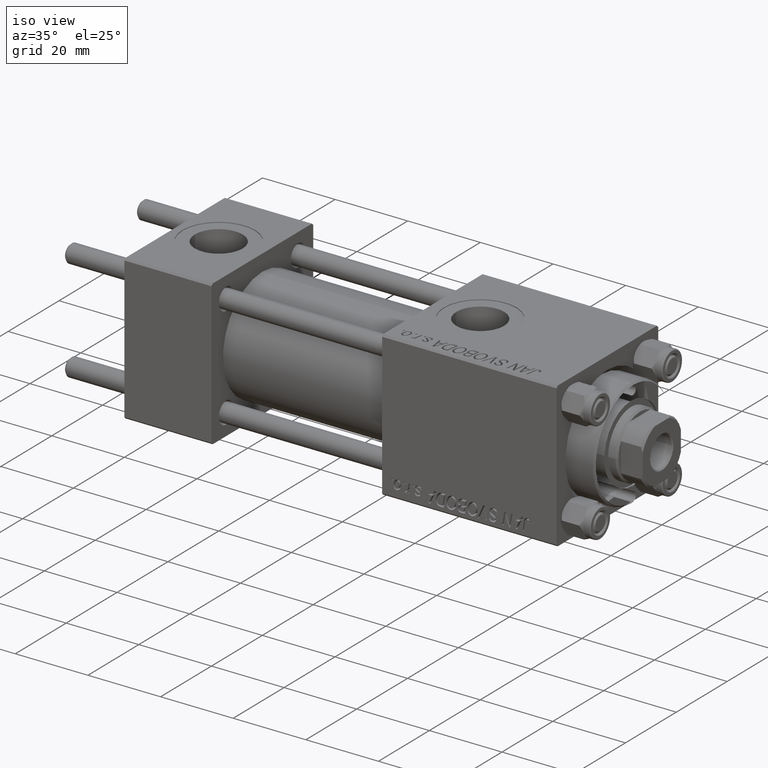
[diagram: clean part render]
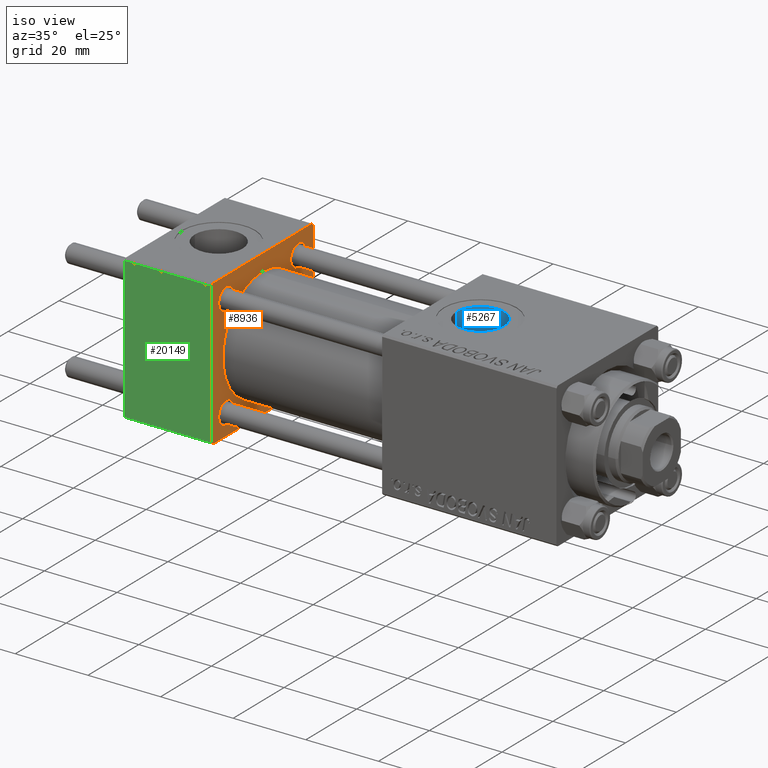
[diagram: same view with three faces highlighted in distinct colors, each labeled with its STEP entity id]
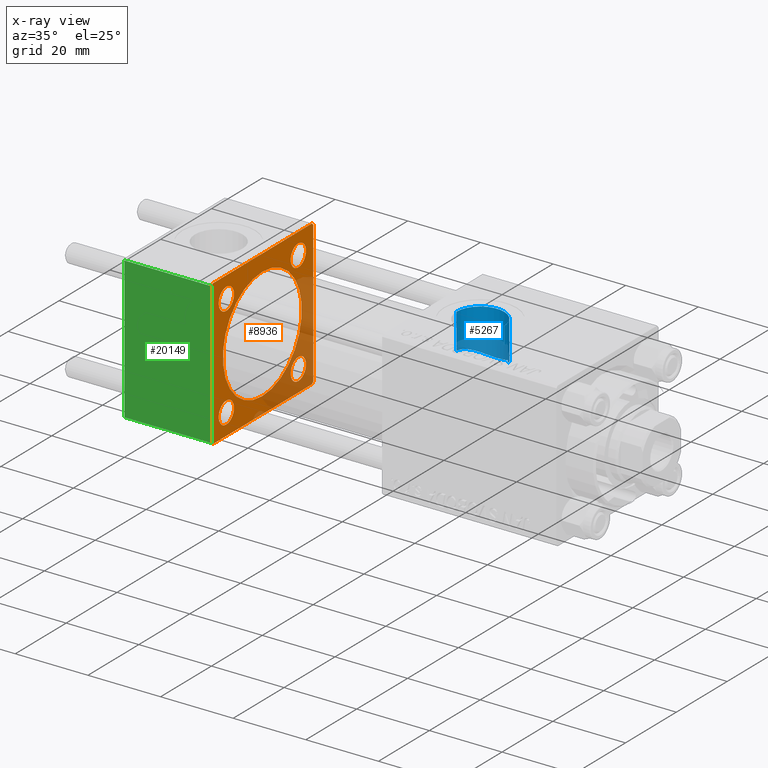
[diagram: x-ray of the same camera — body ghosted, the three highlighted faces saturated]
A machine part, iso view with three faces highlighted in distinct colors.
The next image is the same camera in x-ray (body ghosted, the three faces saturated) — at least one of them is partly hidden behind the body in this view.
Their STEP definitions:

[orange] entity #8936 — the highlighted planar face has unit normal (-1, 0, 0).
#486 = ORIENTED_EDGE ( 'NONE', *, *, #49871, .T. ) ;
#731 = ORIENTED_EDGE ( 'NONE', *, *, #51498, .T. ) ;
#1006 = DIRECTION ( 'NONE',  ( 0.000000000000000000, -1.000000000000000000, 1.734723475976807094E-16 ) ) ;
#1821 = CARTESIAN_POINT ( 'NONE',  ( 24.00000000000000000, 14.14999999999999858, 14.15000000000000036 ) ) ;
#1838 = VECTOR ( 'NONE', #13834, 999.9999999999998863 ) ;
#2351 = VERTEX_POINT ( 'NONE', #36209 ) ;
#2583 = DIRECTION ( 'NONE',  ( 1.000000000000000000, 0.000000000000000000, 0.000000000000000000 ) ) ;
#3215 = ORIENTED_EDGE ( 'NONE', *, *, #45029, .T. ) ;
#3535 = VERTEX_POINT ( 'NONE', #40192 ) ;
#3718 = ORIENTED_EDGE ( 'NONE', *, *, #43891, .T. ) ;
#4235 = ORIENTED_EDGE ( 'NONE', *, *, #16400, .T. ) ;
#4400 = CIRCLE ( 'NONE', #27726, 3.000000000000000888 ) ;
#4589 = CARTESIAN_POINT ( 'NONE',  ( 24.00000000000000000, 20.00000000000000000, 20.00000000000000000 ) ) ;
#5092 = CARTESIAN_POINT ( 'NONE',  ( 24.00000000000000000, 20.00000000000000000, 19.49999999999999289 ) ) ;
#6434 = FACE_BOUND ( 'NONE', #37432, .T. ) ;
#6457 = VECTOR ( 'NONE', #20484, 1000.000000000000000 ) ;
#6813 = VECTOR ( 'NONE', #1006, 1000.000000000000000 ) ;
#6913 = DIRECTION ( 'NONE',  ( -1.000000000000000000, -0.000000000000000000, -0.000000000000000000 ) ) ;
#7036 = ORIENTED_EDGE ( 'NONE', *, *, #48771, .F. ) ;
#7281 = CARTESIAN_POINT ( 'NONE',  ( 24.00000000000000000, -20.00000000000000000, -19.49999999999999645 ) ) ;
#7646 = ORIENTED_EDGE ( 'NONE', *, *, #31880, .T. ) ;
#7915 = VECTOR ( 'NONE', #11547, 1000.000000000000000 ) ;
#8122 = LINE ( 'NONE', #47991, #40886 ) ;
#8875 = CARTESIAN_POINT ( 'NONE',  ( 24.00000000000000000, 14.14999999999999858, 17.14999999999997726 ) ) ;
#8936 = ADVANCED_FACE ( 'NONE', ( #42646, #6434, #22332, #14519, #22846, #38745 ), #50731, .F. ) ;
#9087 = CIRCLE ( 'NONE', #30745, 3.000000000000000888 ) ;
#10361 = ORIENTED_EDGE ( 'NONE', *, *, #48587, .T. ) ;
#10394 = EDGE_CURVE ( 'NONE', #13994, #34278, #38894, .T. ) ;
#10590 = DIRECTION ( 'NONE',  ( 0.000000000000000000, -1.000000000000000000, -2.602085213965210149E-16 ) ) ;
#10672 = DIRECTION ( 'NONE',  ( -1.000000000000000000, -0.000000000000000000, -0.000000000000000000 ) ) ;
#10812 = EDGE_CURVE ( 'NONE', #27714, #2351, #29770, .T. ) ;
#10854 = DIRECTION ( 'NONE',  ( -0.000000000000000000, 0.7071067811865524577, 0.7071067811865426878 ) ) ;
#10961 = EDGE_LOOP ( 'NONE', ( #44692, #10361 ) ) ;
#11375 = CARTESIAN_POINT ( 'NONE',  ( 24.00000000000000000, 20.00000000000000000, -19.50000000000002132 ) ) ;
#11547 = DIRECTION ( 'NONE',  ( 0.000000000000000000, 0.7071067811865401342, -0.7071067811865549002 ) ) ;
#12855 = VERTEX_POINT ( 'NONE', #43821 ) ;
#13274 = ORIENTED_EDGE ( 'NONE', *, *, #10812, .F. ) ;
#13366 = ORIENTED_EDGE ( 'NONE', *, *, #47722, .F. ) ;
#13689 = EDGE_CURVE ( 'NONE', #14831, #24052, #16057, .T. ) ;
#13834 = DIRECTION ( 'NONE',  ( 0.000000000000000000, -0.7071067811865425767, 0.7071067811865525687 ) ) ;
#13994 = VERTEX_POINT ( 'NONE', #46114 ) ;
#14097 = VERTEX_POINT ( 'NONE', #7281 ) ;
#14519 = FACE_BOUND ( 'NONE', #10961, .T. ) ;
#14633 = VERTEX_POINT ( 'NONE', #5092 ) ;
#14831 = VERTEX_POINT ( 'NONE', #16509 ) ;
#15445 = LINE ( 'NONE', #47247, #7915 ) ;
#15735 = CARTESIAN_POINT ( 'NONE',  ( 24.00000000000000000, -14.14999999999999503, 14.15000000000000391 ) ) ;
#15960 = DIRECTION ( 'NONE',  ( 0.000000000000000000, 0.000000000000000000, 1.000000000000000000 ) ) ;
#16057 = CIRCLE ( 'NONE', #24393, 2.999999999999976463 ) ;
#16400 = EDGE_CURVE ( 'NONE', #36595, #41587, #35326, .T. ) ;
#16509 = CARTESIAN_POINT ( 'NONE',  ( 24.00000000000000000, 14.14999999999999858, 11.15000000000002700 ) ) ;
#18268 = EDGE_CURVE ( 'NONE', #14097, #12855, #15445, .T. ) ;
#18412 = AXIS2_PLACEMENT_3D ( 'NONE', #34747, #50645, #15960 ) ;
#19192 = ORIENTED_EDGE ( 'NONE', *, *, #47316, .T. ) ;
#19359 = CARTESIAN_POINT ( 'NONE',  ( 24.00000000000000000, -14.14999999999999503, 14.15000000000000391 ) ) ;
#20117 = CARTESIAN_POINT ( 'NONE',  ( 24.00000000000000000, -20.00000000000000355, 19.49999999999998224 ) ) ;
#20484 = DIRECTION ( 'NONE',  ( 0.000000000000000000, 0.000000000000000000, -1.000000000000000000 ) ) ;
#20731 = LINE ( 'NONE', #4589, #6457 ) ;
#21055 = CARTESIAN_POINT ( 'NONE',  ( 24.00000000000000000, 14.14999999999999858, -14.15000000000000036 ) ) ;
#21179 = AXIS2_PLACEMENT_3D ( 'NONE', #31153, #6913, #30642 ) ;
#21691 = DIRECTION ( 'NONE',  ( 0.000000000000000000, 0.000000000000000000, 1.000000000000000000 ) ) ;
#21724 = CIRCLE ( 'NONE', #35059, 2.999999999999976463 ) ;
#21789 = EDGE_LOOP ( 'NONE', ( #7646, #731 ) ) ;
#21793 = AXIS2_PLACEMENT_3D ( 'NONE', #27645, #38855, #31295 ) ;
#22153 = CARTESIAN_POINT ( 'NONE',  ( 24.00000000000000000, 0.000000000000000000, 0.000000000000000000 ) ) ;
#22332 = FACE_BOUND ( 'NONE', #21789, .T. ) ;
#22408 = DIRECTION ( 'NONE',  ( 0.000000000000000000, 0.000000000000000000, 1.000000000000000000 ) ) ;
#22552 = AXIS2_PLACEMENT_3D ( 'NONE', #50022, #10672, #33604 ) ;
#22846 = FACE_BOUND ( 'NONE', #30163, .T. ) ;
#23079 = AXIS2_PLACEMENT_3D ( 'NONE', #30296, #33953, #21691 ) ;
#23735 = ORIENTED_EDGE ( 'NONE', *, *, #46838, .T. ) ;
#24052 = VERTEX_POINT ( 'NONE', #8875 ) ;
#24393 = AXIS2_PLACEMENT_3D ( 'NONE', #1821, #37542, #47561 ) ;
#24465 = CARTESIAN_POINT ( 'NONE',  ( 24.00000000000000000, -14.14999999999999503, -11.15000000000000391 ) ) ;
#24595 = ORIENTED_EDGE ( 'NONE', *, *, #18268, .T. ) ;
#24748 = LINE ( 'NONE', #44796, #6813 ) ;
#24921 = EDGE_CURVE ( 'NONE', #14633, #29828, #20731, .T. ) ;
#24947 = CARTESIAN_POINT ( 'NONE',  ( 24.00000000000000000, 19.50000000000000711, -20.00000000000000711 ) ) ;
#25598 = AXIS2_PLACEMENT_3D ( 'NONE', #22153, #2583, #22408 ) ;
#27553 = CIRCLE ( 'NONE', #22552, 3.000000000000000888 ) ;
#27645 = CARTESIAN_POINT ( 'NONE',  ( 24.00000000000000000, 14.14999999999999858, 14.15000000000000036 ) ) ;
#27703 = DIRECTION ( 'NONE',  ( -1.000000000000000000, -0.000000000000000000, -0.000000000000000000 ) ) ;
#27714 = VERTEX_POINT ( 'NONE', #44134 ) ;
#27726 = AXIS2_PLACEMENT_3D ( 'NONE', #19359, #27703, #39432 ) ;
#28174 = DIRECTION ( 'NONE',  ( 0.000000000000000000, 8.673617379884036705E-17, -1.000000000000000000 ) ) ;
#28322 = CARTESIAN_POINT ( 'NONE',  ( 24.00000000000000000, -19.49999999999999289, 19.99999999999998934 ) ) ;
#28466 = CARTESIAN_POINT ( 'NONE',  ( 24.00000000000000000, 20.00000000000000000, -19.50000000000002132 ) ) ;
#28888 = CARTESIAN_POINT ( 'NONE',  ( 24.00000000000000000, -20.00000000000000355, 19.49999999999998224 ) ) ;
#29284 = VECTOR ( 'NONE', #10590, 1000.000000000000000 ) ;
#29770 = CIRCLE ( 'NONE', #25598, 15.50000000000000000 ) ;
#29828 = VERTEX_POINT ( 'NONE', #28466 ) ;
#30134 = LINE ( 'NONE', #47056, #29284 ) ;
#30163 = EDGE_LOOP ( 'NONE', ( #13274, #13366 ) ) ;
#30296 = CARTESIAN_POINT ( 'NONE',  ( 24.00000000000000000, 14.14999999999999858, -14.15000000000000036 ) ) ;
#30415 = CARTESIAN_POINT ( 'NONE',  ( 24.00000000000000000, 0.000000000000000000, 0.000000000000000000 ) ) ;
#30642 = DIRECTION ( 'NONE',  ( 0.000000000000000000, 0.000000000000000000, 1.000000000000000000 ) ) ;
#30745 = AXIS2_PLACEMENT_3D ( 'NONE', #15735, #35807, #31641 ) ;
#30926 = DIRECTION ( 'NONE',  ( -0.000000000000000000, 0.000000000000000000, 1.000000000000000000 ) ) ;
#31153 = CARTESIAN_POINT ( 'NONE',  ( 24.00000000000000000, -14.14999999999999503, -14.15000000000000391 ) ) ;
#31295 = DIRECTION ( 'NONE',  ( 0.000000000000000000, 0.000000000000000000, 1.000000000000000000 ) ) ;
#31641 = DIRECTION ( 'NONE',  ( 0.000000000000000000, 0.000000000000000000, 1.000000000000000000 ) ) ;
#31880 = EDGE_CURVE ( 'NONE', #49769, #3535, #9087, .T. ) ;
#33065 = EDGE_CURVE ( 'NONE', #49661, #29828, #38992, .T. ) ;
#33479 = ORIENTED_EDGE ( 'NONE', *, *, #36521, .T. ) ;
#33568 = DIRECTION ( 'NONE',  ( 0.000000000000000000, 0.000000000000000000, 1.000000000000000000 ) ) ;
#33604 = DIRECTION ( 'NONE',  ( 0.000000000000000000, 0.000000000000000000, 1.000000000000000000 ) ) ;
#33898 = LINE ( 'NONE', #49276, #1838 ) ;
#33953 = DIRECTION ( 'NONE',  ( -1.000000000000000000, -0.000000000000000000, -0.000000000000000000 ) ) ;
#34234 = VECTOR ( 'NONE', #40181, 1000.000000000000114 ) ;
#34265 = EDGE_LOOP ( 'NONE', ( #4235, #23735 ) ) ;
#34278 = VERTEX_POINT ( 'NONE', #47560 ) ;
#34609 = CARTESIAN_POINT ( 'NONE',  ( 24.00000000000000000, -14.14999999999999503, -17.15000000000000568 ) ) ;
#34747 = CARTESIAN_POINT ( 'NONE',  ( 24.00000000000000000, 0.000000000000000000, 0.000000000000000000 ) ) ;
#35059 = AXIS2_PLACEMENT_3D ( 'NONE', #21055, #40618, #33568 ) ;
#35149 = VERTEX_POINT ( 'NONE', #28322 ) ;
#35326 = CIRCLE ( 'NONE', #21179, 3.000000000000000888 ) ;
#35807 = DIRECTION ( 'NONE',  ( -1.000000000000000000, -0.000000000000000000, -0.000000000000000000 ) ) ;
#36209 = CARTESIAN_POINT ( 'NONE',  ( 24.00000000000000000, 1.898202538678397557E-15, -15.50000000000000000 ) ) ;
#36521 = EDGE_CURVE ( 'NONE', #35149, #41591, #43309, .T. ) ;
#36595 = VERTEX_POINT ( 'NONE', #34609 ) ;
#36605 = VECTOR ( 'NONE', #10854, 1000.000000000000000 ) ;
#36759 = CIRCLE ( 'NONE', #18412, 15.50000000000000000 ) ;
#36798 = CIRCLE ( 'NONE', #21793, 2.999999999999976463 ) ;
#37432 = EDGE_LOOP ( 'NONE', ( #46447, #3718 ) ) ;
#37542 = DIRECTION ( 'NONE',  ( -1.000000000000000000, -0.000000000000000000, -0.000000000000000000 ) ) ;
#37968 = DIRECTION ( 'NONE',  ( -1.000000000000000000, 0.000000000000000000, -0.000000000000000000 ) ) ;
#38745 = FACE_OUTER_BOUND ( 'NONE', #49829, .T. ) ;
#38855 = DIRECTION ( 'NONE',  ( -1.000000000000000000, -0.000000000000000000, -0.000000000000000000 ) ) ;
#38894 = CIRCLE ( 'NONE', #23079, 2.999999999999976463 ) ;
#38992 = LINE ( 'NONE', #11375, #36605 ) ;
#39432 = DIRECTION ( 'NONE',  ( 0.000000000000000000, 0.000000000000000000, 1.000000000000000000 ) ) ;
#40181 = DIRECTION ( 'NONE',  ( -0.000000000000000000, -0.7071067811865500152, -0.7071067811865451302 ) ) ;
#40192 = CARTESIAN_POINT ( 'NONE',  ( 24.00000000000000000, -14.14999999999999503, 17.15000000000000568 ) ) ;
#40618 = DIRECTION ( 'NONE',  ( -1.000000000000000000, -0.000000000000000000, -0.000000000000000000 ) ) ;
#40886 = VECTOR ( 'NONE', #28174, 1000.000000000000000 ) ;
#41587 = VERTEX_POINT ( 'NONE', #24465 ) ;
#41591 = VERTEX_POINT ( 'NONE', #28888 ) ;
#42642 = CARTESIAN_POINT ( 'NONE',  ( 24.00000000000000000, -14.14999999999999503, 11.15000000000000391 ) ) ;
#42646 = FACE_BOUND ( 'NONE', #34265, .T. ) ;
#42731 = VERTEX_POINT ( 'NONE', #45210 ) ;
#43309 = LINE ( 'NONE', #20117, #34234 ) ;
#43821 = CARTESIAN_POINT ( 'NONE',  ( 24.00000000000000000, -19.50000000000000711, -20.00000000000000000 ) ) ;
#43891 = EDGE_CURVE ( 'NONE', #34278, #13994, #21724, .T. ) ;
#44134 = CARTESIAN_POINT ( 'NONE',  ( 24.00000000000000000, 0.000000000000000000, 15.50000000000000000 ) ) ;
#44692 = ORIENTED_EDGE ( 'NONE', *, *, #13689, .T. ) ;
#44796 = CARTESIAN_POINT ( 'NONE',  ( 24.00000000000000000, 20.00000000000000000, -20.00000000000000711 ) ) ;
#45029 = EDGE_CURVE ( 'NONE', #42731, #35149, #30134, .T. ) ;
#45210 = CARTESIAN_POINT ( 'NONE',  ( 24.00000000000000000, 19.50000000000000000, 20.00000000000000000 ) ) ;
#46114 = CARTESIAN_POINT ( 'NONE',  ( 24.00000000000000000, 14.14999999999999858, -17.14999999999997726 ) ) ;
#46447 = ORIENTED_EDGE ( 'NONE', *, *, #10394, .T. ) ;
#46838 = EDGE_CURVE ( 'NONE', #41587, #36595, #27553, .T. ) ;
#47056 = CARTESIAN_POINT ( 'NONE',  ( 24.00000000000000000, 20.00000000000000000, 20.00000000000000000 ) ) ;
#47247 = CARTESIAN_POINT ( 'NONE',  ( 24.00000000000000000, -19.50000000000000711, -20.00000000000000000 ) ) ;
#47316 = EDGE_CURVE ( 'NONE', #41591, #14097, #8122, .T. ) ;
#47560 = CARTESIAN_POINT ( 'NONE',  ( 24.00000000000000000, 14.14999999999999858, -11.15000000000002700 ) ) ;
#47561 = DIRECTION ( 'NONE',  ( 0.000000000000000000, 0.000000000000000000, 1.000000000000000000 ) ) ;
#47722 = EDGE_CURVE ( 'NONE', #2351, #27714, #36759, .T. ) ;
#47991 = CARTESIAN_POINT ( 'NONE',  ( 24.00000000000000000, -20.00000000000000355, 19.99999999999998934 ) ) ;
#48019 = AXIS2_PLACEMENT_3D ( 'NONE', #30415, #37968, #30926 ) ;
#48587 = EDGE_CURVE ( 'NONE', #24052, #14831, #36798, .T. ) ;
#48771 = EDGE_CURVE ( 'NONE', #49661, #12855, #24748, .T. ) ;
#49276 = CARTESIAN_POINT ( 'NONE',  ( 24.00000000000000000, 19.50000000000000000, 20.00000000000000000 ) ) ;
#49661 = VERTEX_POINT ( 'NONE', #24947 ) ;
#49769 = VERTEX_POINT ( 'NONE', #42642 ) ;
#49829 = EDGE_LOOP ( 'NONE', ( #7036, #50801, #50646, #486, #3215, #33479, #19192, #24595 ) ) ;
#49871 = EDGE_CURVE ( 'NONE', #14633, #42731, #33898, .T. ) ;
#50022 = CARTESIAN_POINT ( 'NONE',  ( 24.00000000000000000, -14.14999999999999503, -14.15000000000000391 ) ) ;
#50645 = DIRECTION ( 'NONE',  ( 1.000000000000000000, 0.000000000000000000, 0.000000000000000000 ) ) ;
#50646 = ORIENTED_EDGE ( 'NONE', *, *, #24921, .F. ) ;
#50731 = PLANE ( 'NONE',  #48019 ) ;
#50801 = ORIENTED_EDGE ( 'NONE', *, *, #33065, .T. ) ;
#51498 = EDGE_CURVE ( 'NONE', #3535, #49769, #4400, .T. ) ;

[blue] entity #5267 — the highlighted cylindrical surface (edge-blend (fillet) strip) has radius 6.58 mm, axis along (0, 0, -1).
#830 = CARTESIAN_POINT ( 'NONE',  ( 78.80526461953910200, 4.043265572017154419, 9.147692279144168381 ) ) ;
#1134 = EDGE_CURVE ( 'NONE', #28828, #38947, #49943, .T. ) ;
#1149 = DIRECTION ( 'NONE',  ( 0.000000000000000000, 0.000000000000000000, -1.000000000000000000 ) ) ;
#1350 = CARTESIAN_POINT ( 'NONE',  ( 77.41999999999845272, 0.2033100982330938999, 10.00000000000000178 ) ) ;
#1605 = CARTESIAN_POINT ( 'NONE',  ( 81.49663029925129365, 6.097981844537015306, 7.927249195841285179 ) ) ;
#1910 = CARTESIAN_POINT ( 'NONE',  ( 90.58000000000154728, 1.836897619300433381E-15, 15.00000000000000000 ) ) ;
#2904 = CARTESIAN_POINT ( 'NONE',  ( 88.19646942446757976, 5.082480376344788553, 8.617202020241876426 ) ) ;
#3620 = CARTESIAN_POINT ( 'NONE',  ( 90.30000000000001137, 1.899052395280416805, 14.87930105885285670 ) ) ;
#3709 = CARTESIAN_POINT ( 'NONE',  ( 90.58000000000154728, -9.289058821376597120E-16, 42.80000000000000426 ) ) ;
#5019 = CARTESIAN_POINT ( 'NONE',  ( 85.04005595195334877, 6.509727955661519516, 7.591870904138360743 ) ) ;
#5267 = ADVANCED_FACE ( 'NONE', ( #48919 ), #36665, .F. ) ;
#6596 = LINE ( 'NONE', #3709, #24962 ) ;
#7078 = CARTESIAN_POINT ( 'NONE',  ( 89.47113332388794049, 3.675278640241169903, 9.305982037814699126 ) ) ;
#7747 = EDGE_CURVE ( 'NONE', #8688, #20151, #34328, .T. ) ;
#7993 = ORIENTED_EDGE ( 'NONE', *, *, #39632, .F. ) ;
#8318 = CARTESIAN_POINT ( 'NONE',  ( 77.41999999999846693, 1.225496641077837722E-15, 9.999999999999998224 ) ) ;
#8688 = VERTEX_POINT ( 'NONE', #47919 ) ;
#8937 = CARTESIAN_POINT ( 'NONE',  ( 82.63059524258804345, 6.448383834521553837, 7.643587924518619126 ) ) ;
#9454 = CARTESIAN_POINT ( 'NONE',  ( 80.16598197494323585, 5.361182684198095849, 8.446034601453003887 ) ) ;
#9710 = CARTESIAN_POINT ( 'NONE',  ( 79.29945075163941226, 4.620086428005418355, 8.874409408838401347 ) ) ;
#9777 = EDGE_LOOP ( 'NONE', ( #37054, #30109, #34068, #21640, #7993, #37537 ) ) ;
#10486 = CARTESIAN_POINT ( 'NONE',  ( 87.89770756635016369, 5.314995828701263747, 8.474223888701592600 ) ) ;
#11973 = CARTESIAN_POINT ( 'NONE',  ( 90.58000000000154728, 0.6482402319151120418, 15.00000000000000000 ) ) ;
#13359 = CARTESIAN_POINT ( 'NONE',  ( 78.47036046458491398, 3.571696826447866790, 9.342058825423189106 ) ) ;
#13472 = CARTESIAN_POINT ( 'NONE',  ( 84.00000000000000000, -1.734723475976806897E-15, 42.80000000000000426 ) ) ;
#14524 = DIRECTION ( 'NONE',  ( 0.000000000000000000, 0.000000000000000000, -1.000000000000000000 ) ) ;
#16801 = LINE ( 'NONE', #36873, #18332 ) ;
#17258 = CARTESIAN_POINT ( 'NONE',  ( 77.46686778345895164, 0.8095015862947814167, 9.969213526992616536 ) ) ;
#17476 = CARTESIAN_POINT ( 'NONE',  ( 90.30000000000001137, 1.899052395280416805, 14.87930105885285670 ) ) ;
#17513 = CARTESIAN_POINT ( 'NONE',  ( 83.42309077254218153, 6.566894182961647175, 7.542015064089320653 ) ) ;
#17772 = CARTESIAN_POINT ( 'NONE',  ( 81.14578869086805923, 5.940907422896437140, 8.047130836318883595 ) ) ;
#18332 = VECTOR ( 'NONE', #1149, 1000.000000000000000 ) ;
#19522 = CARTESIAN_POINT ( 'NONE',  ( 90.48627106246551932, 1.281108574220367835, 14.95816952780117504 ) ) ;
#20151 = VERTEX_POINT ( 'NONE', #8318 ) ;
#20662 = CARTESIAN_POINT ( 'NONE',  ( 77.99778063450312970, 2.725070813951062210, 9.629029610001953898 ) ) ;
#20913 = CARTESIAN_POINT ( 'NONE',  ( 86.19913985023920588, 6.213801701240062592, 7.837395548022279002 ) ) ;
#21428 = CARTESIAN_POINT ( 'NONE',  ( 77.78548192684070273, 2.171457386535522005, 9.763238620524230527 ) ) ;
#21640 = ORIENTED_EDGE ( 'NONE', *, *, #31944, .T. ) ;
#22466 = CARTESIAN_POINT ( 'NONE',  ( 89.01137633077168232, 4.281013922256128978, 9.043334261708560362 ) ) ;
#23879 = B_SPLINE_CURVE_WITH_KNOTS ( 'NONE', 3,
 ( #37590, #1350, #25603, #17258, #49064, #32910, #32656, #33168, #21428, #20662, #45399, #13359, #44623, #830, #29253, #9710, #29776, #9454, #25346, #17772, #1605, #48554, #8937, #17513, #33682, #40728, #5019, #29505, #20913, #41492, #48805, #10486, #2904, #38618, #22466, #7078, #33943, #42271, #26892, #30550 ),
 .UNSPECIFIED., .F., .F.,
 ( 4, 2, 2, 2, 2, 2, 2, 2, 2, 2, 2, 2, 2, 2, 2, 2, 2, 2, 2, 4 ),
 ( 0.01932465968159079173, 0.01992623976258372023, 0.02052781984357664874, 0.02112939992456958072, 0.02173098000556250922, 0.02293414016754835236, 0.02353572024854126005, 0.02413730032953417121, 0.02534046049151999352, 0.02654362065350581931, 0.02774678081549164163, 0.02894994097747746048, 0.03015310113946328627, 0.03135626130144910512, 0.03255942146343493437, 0.03376258162542075669, 0.03496574178740657901, 0.03616890194939239439, 0.03737206211137822365, 0.03857522227336403903 ),
 .UNSPECIFIED. ) ;
#24381 = VERTEX_POINT ( 'NONE', #32291 ) ;
#24962 = VECTOR ( 'NONE', #42799, 1000.000000000000000 ) ;
#25346 = CARTESIAN_POINT ( 'NONE',  ( 80.48063172447184854, 5.572696846752806188, 8.306367771682850787 ) ) ;
#25603 = CARTESIAN_POINT ( 'NONE',  ( 77.42954415386088840, 0.4077000747566019712, 9.993712614140443762 ) ) ;
#25989 = CARTESIAN_POINT ( 'NONE',  ( 77.41999999999846693, -1.734723475976806897E-15, 42.80000000000000426 ) ) ;
#26892 = CARTESIAN_POINT ( 'NONE',  ( 90.18394818542550695, 2.284047792793505671, 9.743556464968632369 ) ) ;
#28025 = DIRECTION ( 'NONE',  ( -0.000000000000000000, -0.000000000000000000, -1.000000000000000000 ) ) ;
#28588 = DIRECTION ( 'NONE',  ( 0.000000000000000000, 0.000000000000000000, -1.000000000000000000 ) ) ;
#28828 = VERTEX_POINT ( 'NONE', #17476 ) ;
#29253 = CARTESIAN_POINT ( 'NONE',  ( 78.92452899478391259, 4.191895100649813521, 9.080368974035573970 ) ) ;
#29505 = CARTESIAN_POINT ( 'NONE',  ( 85.82542148765864454, 6.334517411161552758, 7.738665973506989815 ) ) ;
#29657 = VECTOR ( 'NONE', #14524, 1000.000000000000000 ) ;
#29776 = CARTESIAN_POINT ( 'NONE',  ( 79.57202415259416739, 4.882110597333562119, 8.731710965079535924 ) ) ;
#30109 = ORIENTED_EDGE ( 'NONE', *, *, #30304, .F. ) ;
#30304 = EDGE_CURVE ( 'NONE', #8688, #24381, #47305, .T. ) ;
#30450 = AXIS2_PLACEMENT_3D ( 'NONE', #13472, #28588, #40831 ) ;
#30550 = CARTESIAN_POINT ( 'NONE',  ( 90.30000000000001137, 1.899052395280416805, 9.818024241158690657 ) ) ;
#31687 = DIRECTION ( 'NONE',  ( 1.000000000000000000, 0.000000000000000000, 0.000000000000000000 ) ) ;
#31944 = EDGE_CURVE ( 'NONE', #20151, #34867, #23879, .T. ) ;
#32291 = CARTESIAN_POINT ( 'NONE',  ( 90.58000000000154728, -9.289058821376599092E-16, 19.80000000000000071 ) ) ;
#32656 = CARTESIAN_POINT ( 'NONE',  ( 77.61336014068284328, 1.596001079245348286, 9.873755022540338544 ) ) ;
#32910 = CARTESIAN_POINT ( 'NONE',  ( 77.56787295357401035, 1.401479312405162991, 9.903286656888813155 ) ) ;
#33168 = CARTESIAN_POINT ( 'NONE',  ( 77.72206397560209723, 1.980885511870404958, 9.803792647692771922 ) ) ;
#33682 = CARTESIAN_POINT ( 'NONE',  ( 83.83547327919450254, 6.590311166413664878, 7.521181861579123051 ) ) ;
#33943 = CARTESIAN_POINT ( 'NONE',  ( 89.67635654325876260, 3.350987301719415612, 9.428927821902620465 ) ) ;
#34068 = ORIENTED_EDGE ( 'NONE', *, *, #7747, .T. ) ;
#34328 = LINE ( 'NONE', #25989, #29657 ) ;
#34592 = EDGE_CURVE ( 'NONE', #24381, #38947, #6596, .T. ) ;
#34867 = VERTEX_POINT ( 'NONE', #36526 ) ;
#35661 = AXIS2_PLACEMENT_3D ( 'NONE', #40269, #28025, #31687 ) ;
#36526 = CARTESIAN_POINT ( 'NONE',  ( 90.30000000000001137, 1.899052395280416805, 9.818024241158690657 ) ) ;
#36665 = CYLINDRICAL_SURFACE ( 'NONE', #30450, 6.580000000001542837 ) ;
#36873 = CARTESIAN_POINT ( 'NONE',  ( 90.30000000000001137, 1.899052395280416805, 42.80000000000000426 ) ) ;
#37054 = ORIENTED_EDGE ( 'NONE', *, *, #34592, .F. ) ;
#37537 = ORIENTED_EDGE ( 'NONE', *, *, #1134, .T. ) ;
#37590 = CARTESIAN_POINT ( 'NONE',  ( 77.41999999999846693, 1.225496641077837722E-15, 9.999999999999998224 ) ) ;
#38618 = CARTESIAN_POINT ( 'NONE',  ( 88.75576429004956935, 4.563405353889827154, 8.902983152274309475 ) ) ;
#38947 = VERTEX_POINT ( 'NONE', #1910 ) ;
#39632 = EDGE_CURVE ( 'NONE', #28828, #34867, #16801, .T. ) ;
#40269 = CARTESIAN_POINT ( 'NONE',  ( 84.00000000000000000, -1.734723475976806897E-15, 19.80000000000000071 ) ) ;
#40728 = CARTESIAN_POINT ( 'NONE',  ( 84.64208553656848721, 6.561020993393114509, 7.546746410828856000 ) ) ;
#40831 = DIRECTION ( 'NONE',  ( -1.000000000000000000, 0.000000000000000000, 0.000000000000000000 ) ) ;
#41492 = CARTESIAN_POINT ( 'NONE',  ( 86.91556528692413508, 5.911601028564673399, 8.067779981975611747 ) ) ;
#42271 = CARTESIAN_POINT ( 'NONE',  ( 90.03413885016284723, 2.653169395164264976, 9.648548488114556676 ) ) ;
#42799 = DIRECTION ( 'NONE',  ( 0.000000000000000000, 0.000000000000000000, -1.000000000000000000 ) ) ;
#44623 = CARTESIAN_POINT ( 'NONE',  ( 78.57832010883362273, 3.733451394700813442, 9.278448749827713726 ) ) ;
#45399 = CARTESIAN_POINT ( 'NONE',  ( 78.16952377845269950, 3.074422462291888092, 9.522197844733907957 ) ) ;
#46181 = CARTESIAN_POINT ( 'NONE',  ( 90.58000000000154728, 1.836897619300433381E-15, 15.00000000000000000 ) ) ;
#47305 = CIRCLE ( 'NONE', #35661, 6.580000000001542837 ) ;
#47919 = CARTESIAN_POINT ( 'NONE',  ( 77.41999999999846693, -1.734723475976806897E-15, 19.80000000000000071 ) ) ;
#48554 = CARTESIAN_POINT ( 'NONE',  ( 82.24366288463141927, 6.353544079654159127, 7.723932937122186537 ) ) ;
#48805 = CARTESIAN_POINT ( 'NONE',  ( 87.25879362717218157, 5.729011173614271257, 8.200005008995757905 ) ) ;
#48919 = FACE_OUTER_BOUND ( 'NONE', #9777, .T. ) ;
#49064 = CARTESIAN_POINT ( 'NONE',  ( 77.49462714226881133, 1.008229431408755206, 9.951015238921746331 ) ) ;
#49943 = B_SPLINE_CURVE_WITH_KNOTS ( 'NONE', 3,
 ( #3620, #19522, #11973, #46181 ),
 .UNSPECIFIED., .F., .F.,
 ( 4, 4 ),
 ( 0.000000000000000000, 0.001923267627926015643 ),
 .UNSPECIFIED. ) ;

[green] entity #20149 — the highlighted planar face has unit normal (0, 1, 0).
#140 = CARTESIAN_POINT ( 'NONE',  ( 0.000000000000000000, -20.00000000000000355, 19.99999999999998934 ) ) ;
#7281 = CARTESIAN_POINT ( 'NONE',  ( 24.00000000000000000, -20.00000000000000000, -19.49999999999999645 ) ) ;
#7989 = AXIS2_PLACEMENT_3D ( 'NONE', #16380, #12232, #24715 ) ;
#8122 = LINE ( 'NONE', #47991, #40886 ) ;
#9610 = VECTOR ( 'NONE', #42652, 1000.000000000000000 ) ;
#12232 = DIRECTION ( 'NONE',  ( -0.000000000000000000, 1.000000000000000000, 8.673617379884036705E-17 ) ) ;
#14097 = VERTEX_POINT ( 'NONE', #7281 ) ;
#16124 = FACE_OUTER_BOUND ( 'NONE', #42601, .T. ) ;
#16380 = CARTESIAN_POINT ( 'NONE',  ( 24.00000000000000000, -20.00000000000000355, 19.99999999999998934 ) ) ;
#17942 = ORIENTED_EDGE ( 'NONE', *, *, #40573, .T. ) ;
#19131 = ORIENTED_EDGE ( 'NONE', *, *, #47316, .F. ) ;
#19348 = EDGE_CURVE ( 'NONE', #33561, #14097, #46564, .T. ) ;
#20149 = ADVANCED_FACE ( 'NONE', ( #16124 ), #44507, .F. ) ;
#24372 = ORIENTED_EDGE ( 'NONE', *, *, #28936, .T. ) ;
#24715 = DIRECTION ( 'NONE',  ( 0.000000000000000000, -8.673617379884036705E-17, 1.000000000000000000 ) ) ;
#26765 = CARTESIAN_POINT ( 'NONE',  ( 24.00000000000000000, -20.00000000000000000, -19.49999999999999645 ) ) ;
#28174 = DIRECTION ( 'NONE',  ( 0.000000000000000000, 8.673617379884036705E-17, -1.000000000000000000 ) ) ;
#28509 = CARTESIAN_POINT ( 'NONE',  ( 0.000000000000000000, -20.00000000000000355, 19.49999999999998224 ) ) ;
#28888 = CARTESIAN_POINT ( 'NONE',  ( 24.00000000000000000, -20.00000000000000355, 19.49999999999998224 ) ) ;
#28936 = EDGE_CURVE ( 'NONE', #41591, #37012, #35449, .T. ) ;
#32381 = ORIENTED_EDGE ( 'NONE', *, *, #19348, .T. ) ;
#33364 = VECTOR ( 'NONE', #39790, 1000.000000000000000 ) ;
#33561 = VERTEX_POINT ( 'NONE', #44832 ) ;
#34797 = VECTOR ( 'NONE', #47440, 1000.000000000000000 ) ;
#35449 = LINE ( 'NONE', #46408, #34797 ) ;
#37012 = VERTEX_POINT ( 'NONE', #28509 ) ;
#39266 = LINE ( 'NONE', #140, #33364 ) ;
#39790 = DIRECTION ( 'NONE',  ( 0.000000000000000000, 8.673617379884036705E-17, -1.000000000000000000 ) ) ;
#40573 = EDGE_CURVE ( 'NONE', #37012, #33561, #39266, .T. ) ;
#40886 = VECTOR ( 'NONE', #28174, 1000.000000000000000 ) ;
#41591 = VERTEX_POINT ( 'NONE', #28888 ) ;
#42601 = EDGE_LOOP ( 'NONE', ( #17942, #32381, #19131, #24372 ) ) ;
#42652 = DIRECTION ( 'NONE',  ( 1.000000000000000000, 0.000000000000000000, 0.000000000000000000 ) ) ;
#44507 = PLANE ( 'NONE',  #7989 ) ;
#44832 = CARTESIAN_POINT ( 'NONE',  ( 0.000000000000000000, -20.00000000000000000, -19.49999999999999645 ) ) ;
#46408 = CARTESIAN_POINT ( 'NONE',  ( 24.00000000000000000, -20.00000000000000355, 19.49999999999998224 ) ) ;
#46564 = LINE ( 'NONE', #26765, #9610 ) ;
#47316 = EDGE_CURVE ( 'NONE', #41591, #14097, #8122, .T. ) ;
#47440 = DIRECTION ( 'NONE',  ( -1.000000000000000000, 0.000000000000000000, 0.000000000000000000 ) ) ;
#47991 = CARTESIAN_POINT ( 'NONE',  ( 24.00000000000000000, -20.00000000000000355, 19.99999999999998934 ) ) ;